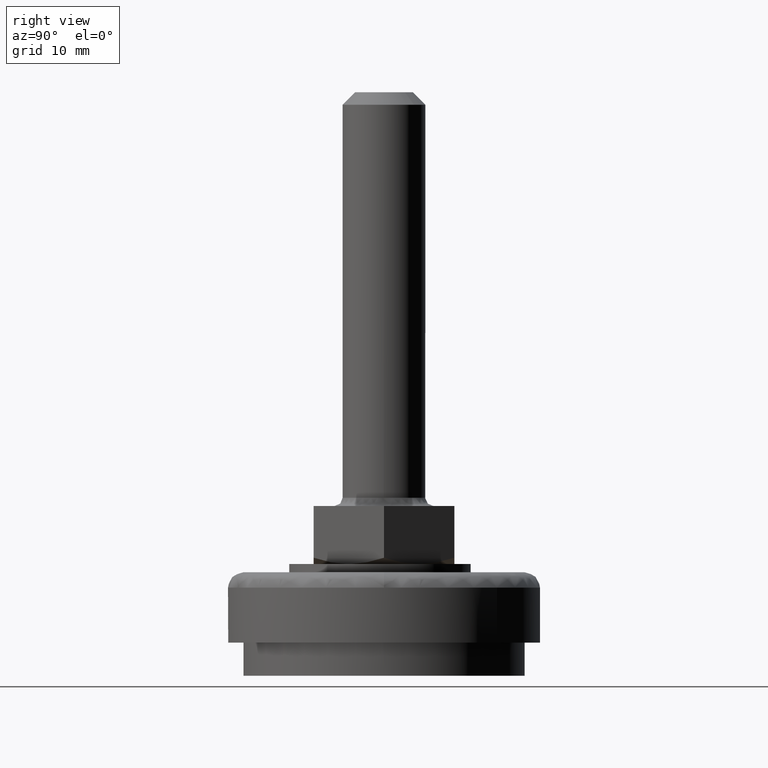
[diagram: clean part render]
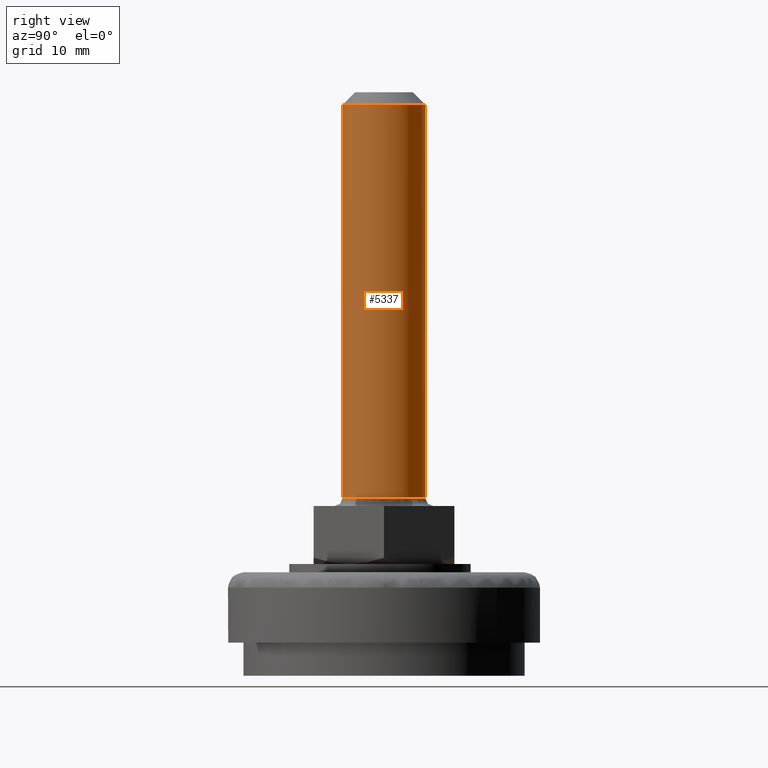
[diagram: same view with one face highlighted and labeled with its STEP entity id]
A machine part, right view. The second image highlights one B-rep face of the part: STEP entity #5337.
In plain terms, the highlighted face is a freeform B-spline surface patch.
Its self-contained STEP definition (entity closure, byte-faithful):
#5074=CARTESIAN_POINT('',(0.043632677810114,4.999809615361471,68.999999999956628));
#5075=VERTEX_POINT('',#5074);
#5081=CARTESIAN_POINT('',(-5.0,0.0,69.0));
#5082=VERTEX_POINT('',#5081);
#5083=CARTESIAN_POINT('',(-5.0,0.0,69.0));
#5084=CARTESIAN_POINT('',(-5.000000000000001,5.000000000000001,69.0));
#5085=CARTESIAN_POINT('',(0.0,5.0,69.0));
#5086=CARTESIAN_POINT('',(0.021816754421398,5.000000000000001,69.0));
#5087=CARTESIAN_POINT('',(0.043632677810114,4.999809615361471,68.999999999956628));
#5095=(BOUNDED_CURVE()B_SPLINE_CURVE(2,(#5083,#5084,#5085,#5086,#5087),.UNSPECIFIED.,.F.,.U.)B_SPLINE_CURVE_WITH_KNOTS((3,2,3),(0.500000000000000,0.750000000000000,0.751539894357384),.UNSPECIFIED.)CURVE()GEOMETRIC_REPRESENTATION_ITEM()RATIONAL_B_SPLINE_CURVE((1.0,0.707106781186548,1.0,0.998195901540132,0.996414028048572))REPRESENTATION_ITEM(''));
#5096=EDGE_CURVE('',#5082,#5075,#5095,.T.);
#5098=CARTESIAN_POINT('',(-3.267685414833657,-3.784472490279160,69.0));
#5099=VERTEX_POINT('',#5098);
#5100=CARTESIAN_POINT('',(-3.267685414833657,-3.784472490279161,69.0));
#5101=CARTESIAN_POINT('',(-5.0,-2.288713406710740,69.0));
#5102=CARTESIAN_POINT('',(-5.0,0.0,69.0));
#5110=(BOUNDED_CURVE()B_SPLINE_CURVE(2,(#5100,#5101,#5102),.UNSPECIFIED.,.F.,.U.)B_SPLINE_CURVE_WITH_KNOTS((3,3),(0.363957600839553,0.500000000000000),.UNSPECIFIED.)CURVE()GEOMETRIC_REPRESENTATION_ITEM()RATIONAL_B_SPLINE_CURVE((0.854696232557818,0.840616415259169,1.0))REPRESENTATION_ITEM(''));
#5111=EDGE_CURVE('',#5099,#5082,#5110,.T.);
#5113=CARTESIAN_POINT('',(-0.130880583114135,-4.998286733766520,69.0));
#5114=VERTEX_POINT('',#5113);
#5128=CARTESIAN_POINT('',(5.0,0.0,69.0));
#5129=VERTEX_POINT('',#5128);
#5130=CARTESIAN_POINT('',(5.0,0.0,69.0));
#5131=CARTESIAN_POINT('',(5.000000000000001,-5.000000000000001,69.0));
#5132=CARTESIAN_POINT('',(0.0,-5.0,69.0));
#5133=CARTESIAN_POINT('',(-0.065451505142447,-5.000000000000001,69.0));
#5134=CARTESIAN_POINT('',(-0.130880583114135,-4.998286733766520,69.0));
#5142=(BOUNDED_CURVE()B_SPLINE_CURVE(2,(#5130,#5131,#5132,#5133,#5134),.UNSPECIFIED.,.F.,.U.)B_SPLINE_CURVE_WITH_KNOTS((3,2,3),(0.0,0.250000000000000,0.254603161143202),.UNSPECIFIED.)CURVE()GEOMETRIC_REPRESENTATION_ITEM()RATIONAL_B_SPLINE_CURVE((1.0,0.707106781186548,1.0,0.994607061264202,0.989412719056695))REPRESENTATION_ITEM(''));
#5143=EDGE_CURVE('',#5129,#5114,#5142,.T.);
#5145=CARTESIAN_POINT('',(3.448196213929428,3.620765508872913,68.999999999999915));
#5146=VERTEX_POINT('',#5145);
#5147=CARTESIAN_POINT('',(3.448196213929428,3.620765508872913,68.999999999999915));
#5148=CARTESIAN_POINT('',(4.999999999999999,2.142922238767091,68.999999999999986));
#5149=CARTESIAN_POINT('',(5.0,0.0,69.0));
#5157=(BOUNDED_CURVE()B_SPLINE_CURVE(2,(#5147,#5148,#5149),.UNSPECIFIED.,.F.,.U.)B_SPLINE_CURVE_WITH_KNOTS((3,3),(0.871317023850317,1.0),.UNSPECIFIED.)CURVE()GEOMETRIC_REPRESENTATION_ITEM()RATIONAL_B_SPLINE_CURVE((0.853680523245723,0.849238515636099,1.0))REPRESENTATION_ITEM(''));
#5158=EDGE_CURVE('',#5146,#5129,#5157,.T.);
#5196=CARTESIAN_POINT('',(0.043632677810114,4.999809615361471,68.999999999956628));
#5197=CARTESIAN_POINT('',(2.018230574103055,4.982577560286129,68.999999999999986));
#5198=CARTESIAN_POINT('',(3.448196213929428,3.620765508872913,68.999999999999915));
#5206=(BOUNDED_CURVE()B_SPLINE_CURVE(2,(#5196,#5197,#5198),.UNSPECIFIED.,.F.,.U.)B_SPLINE_CURVE_WITH_KNOTS((3,3),(0.751539894357384,0.871317023850317),.UNSPECIFIED.)CURVE()GEOMETRIC_REPRESENTATION_ITEM()RATIONAL_B_SPLINE_CURVE((0.996414028048573,0.857815109937655,0.853680523245723))REPRESENTATION_ITEM(''));
#5207=EDGE_CURVE('',#5075,#5146,#5206,.T.);
#5213=CARTESIAN_POINT('',(-3.267686856523481,-3.784471245458693,70.187500000010985));
#5214=CARTESIAN_POINT('',(-5.060282995607246,-2.236661138625977,70.187500000010985));
#5215=CARTESIAN_POINT('',(-4.998286624877784,0.130884741539367,70.187500000010985));
#5216=CARTESIAN_POINT('',(-4.867401883338416,5.129171366417153,70.187500000010985));
#5217=CARTESIAN_POINT('',(0.130884741539367,4.998286624877784,70.187500000010985));
#5218=CARTESIAN_POINT('',(5.129171366417153,4.867401883338416,70.187500000010985));
#5219=CARTESIAN_POINT('',(4.998286624877784,-0.130884741539367,70.187500000010985));
#5220=CARTESIAN_POINT('',(4.867401883338416,-5.129171366417153,70.187500000010985));
#5221=CARTESIAN_POINT('',(-0.130884741539367,-4.998286624877784,70.187500000010985));
#5222=CARTESIAN_POINT('',(-3.267686856523481,-3.784471245458693,20.282812499549866));
#5223=CARTESIAN_POINT('',(-5.060282995607246,-2.236661138625977,20.282812499549863));
#5224=CARTESIAN_POINT('',(-4.998286624877784,0.130884741539367,20.282812499549859));
#5225=CARTESIAN_POINT('',(-4.867401883338416,5.129171366417153,20.282812499549866));
#5226=CARTESIAN_POINT('',(0.130884741539367,4.998286624877784,20.282812499549859));
#5227=CARTESIAN_POINT('',(5.129171366417153,4.867401883338416,20.282812499549866));
#5228=CARTESIAN_POINT('',(4.998286624877784,-0.130884741539367,20.282812499549859));
#5229=CARTESIAN_POINT('',(4.867401883338416,-5.129171366417153,20.282812499549866));
#5230=CARTESIAN_POINT('',(-0.130884741539367,-4.998286624877784,20.282812499549859));
#5238=(BOUNDED_SURFACE()B_SPLINE_SURFACE(2,1,((#5213,#5222),(#5214,#5223),(#5215,#5224),(#5216,#5225),(#5217,#5226),(#5218,#5227),(#5219,#5228),(#5220,#5229),(#5221,#5230)),.UNSPECIFIED.,.F.,.F.,.U.)B_SPLINE_SURFACE_WITH_KNOTS((3,2,2,2,3),(2,2),(0.0,4.639191898578663,12.923463146040559,21.207734393502459,29.492005640964361),(0.0,49.904687500461129),.UNSPECIFIED.)GEOMETRIC_REPRESENTATION_ITEM()RATIONAL_B_SPLINE_SURFACE(((0.855662221768731,0.855662221768731),(0.835979797464467,0.835979797464467),(1.0,1.0),(0.707106781186548,0.707106781186548),(1.0,1.0),(0.707106781186548,0.707106781186548),(1.0,1.0),(0.707106781186548,0.707106781186548),(1.0,1.0)))REPRESENTATION_ITEM('')SURFACE());
#5239=CARTESIAN_POINT('',(-5.0,0.0,21.500000000000000));
#5240=VERTEX_POINT('',#5239);
#5241=CARTESIAN_POINT('',(-3.267684878484034,-3.784472953387294,21.500000000000011));
#5242=VERTEX_POINT('',#5241);
#5243=CARTESIAN_POINT('',(-5.0,0.0,21.500000000000000));
#5244=CARTESIAN_POINT('',(-5.0,-2.288713835257791,21.500000000000000));
#5245=CARTESIAN_POINT('',(-3.267684878484034,-3.784472953387294,21.500000000000011));
#5253=(BOUNDED_CURVE()B_SPLINE_CURVE(2,(#5243,#5244,#5245),.UNSPECIFIED.,.F.,.U.)B_SPLINE_CURVE_WITH_KNOTS((3,3),(0.500000000000000,0.636042420573532),.UNSPECIFIED.)CURVE()GEOMETRIC_REPRESENTATION_ITEM()RATIONAL_B_SPLINE_CURVE((1.0,0.840616390172180,0.854696236990151))REPRESENTATION_ITEM(''));
#5254=EDGE_CURVE('',#5240,#5242,#5253,.T.);
#5255=ORIENTED_EDGE('',*,*,#5254,.T.);
#5256=CARTESIAN_POINT('',(-3.267685414833657,-3.784472490279160,69.0));
#5257=CARTESIAN_POINT('',(-3.267684878484034,-3.784472953387294,21.500000000000011));
#5258=QUASI_UNIFORM_CURVE('',1,(#5256,#5257),.UNSPECIFIED.,.F.,.U.);
#5259=EDGE_CURVE('',#5099,#5242,#5258,.T.);
#5260=ORIENTED_EDGE('',*,*,#5259,.F.);
#5261=ORIENTED_EDGE('',*,*,#5111,.T.);
#5262=ORIENTED_EDGE('',*,*,#5096,.T.);
#5263=ORIENTED_EDGE('',*,*,#5207,.T.);
#5264=ORIENTED_EDGE('',*,*,#5158,.T.);
#5265=ORIENTED_EDGE('',*,*,#5143,.T.);
#5266=CARTESIAN_POINT('',(-0.130884744751212,-4.998286624793680,21.500000000000000));
#5267=VERTEX_POINT('',#5266);
#5268=CARTESIAN_POINT('',(-0.130880583114135,-4.998286733766520,69.0));
#5269=CARTESIAN_POINT('',(-0.130884744751212,-4.998286624793680,21.500000000000000));
#5270=QUASI_UNIFORM_CURVE('',1,(#5268,#5269),.UNSPECIFIED.,.F.,.U.);
#5271=EDGE_CURVE('',#5114,#5267,#5270,.T.);
#5272=ORIENTED_EDGE('',*,*,#5271,.T.);
#5273=CARTESIAN_POINT('',(4.999605221019039,-0.062830199420076,21.499999999561108));
#5274=VERTEX_POINT('',#5273);
#5275=CARTESIAN_POINT('',(-0.130884744751212,-4.998286624793679,21.500000000000004));
#5276=CARTESIAN_POINT('',(-0.065453588637673,-5.000000000000001,21.500000000000000));
#5277=CARTESIAN_POINT('',(0.0,-5.0,21.500000000000000));
#5278=CARTESIAN_POINT('',(4.937559649530027,-5.0,21.499999999999993));
#5279=CARTESIAN_POINT('',(4.999605221019039,-0.062830199420076,21.499999999561112));
#5287=(BOUNDED_CURVE()B_SPLINE_CURVE(2,(#5275,#5276,#5277,#5278,#5279),.UNSPECIFIED.,.F.,.U.)B_SPLINE_CURVE_WITH_KNOTS((3,2,3),(0.745396693116211,0.750000000000000,0.997784295921495),.UNSPECIFIED.)CURVE()GEOMETRIC_REPRESENTATION_ITEM()RATIONAL_B_SPLINE_CURVE((0.989412390140979,0.994606890518484,1.0,0.709702639984513,0.994854295643476))REPRESENTATION_ITEM(''));
#5288=EDGE_CURVE('',#5267,#5274,#5287,.T.);
#5289=ORIENTED_EDGE('',*,*,#5288,.T.);
#5290=CARTESIAN_POINT('',(5.0,0.0,21.500000000000000));
#5291=VERTEX_POINT('',#5290);
#5292=CARTESIAN_POINT('',(4.999605221019039,-0.062830199420076,21.499999999561112));
#5293=CARTESIAN_POINT('',(5.000000000000001,-0.031416339962762,21.500000000000000));
#5294=CARTESIAN_POINT('',(5.0,0.0,21.500000000000000));
#5302=(BOUNDED_CURVE()B_SPLINE_CURVE(2,(#5292,#5293,#5294),.UNSPECIFIED.,.F.,.U.)B_SPLINE_CURVE_WITH_KNOTS((3,3),(0.997784295921495,1.0),.UNSPECIFIED.)CURVE()GEOMETRIC_REPRESENTATION_ITEM()RATIONAL_B_SPLINE_CURVE((0.994854295643476,0.997404141202034,1.0))REPRESENTATION_ITEM(''));
#5303=EDGE_CURVE('',#5274,#5291,#5302,.T.);
#5304=ORIENTED_EDGE('',*,*,#5303,.T.);
#5305=CARTESIAN_POINT('',(0.348666257941468,4.987828369197670,21.499999999576328));
#5306=VERTEX_POINT('',#5305);
#5307=CARTESIAN_POINT('',(5.0,0.0,21.500000000000000));
#5308=CARTESIAN_POINT('',(4.999999999999998,4.662684236212669,21.500000000000000));
#5309=CARTESIAN_POINT('',(0.348666257941468,4.987828369197670,21.499999999576332));
#5317=(BOUNDED_CURVE()B_SPLINE_CURVE(2,(#5307,#5308,#5309),.UNSPECIFIED.,.F.,.U.)B_SPLINE_CURVE_WITH_KNOTS((3,3),(0.0,0.237833686530703),.UNSPECIFIED.)CURVE()GEOMETRIC_REPRESENTATION_ITEM()RATIONAL_B_SPLINE_CURVE((1.0,0.721360504039011,0.972879876377694))REPRESENTATION_ITEM(''));
#5318=EDGE_CURVE('',#5291,#5306,#5317,.T.);
#5319=ORIENTED_EDGE('',*,*,#5318,.T.);
#5320=CARTESIAN_POINT('',(0.348666257941468,4.987828369197670,21.499999999576332));
#5321=CARTESIAN_POINT('',(0.174545579438051,5.0,21.500000000000007));
#5322=CARTESIAN_POINT('',(0.0,5.0,21.500000000000000));
#5323=CARTESIAN_POINT('',(-5.000000000000001,5.000000000000001,21.499999999999996));
#5324=CARTESIAN_POINT('',(-5.0,0.0,21.500000000000000));
#5332=(BOUNDED_CURVE()B_SPLINE_CURVE(2,(#5320,#5321,#5322,#5323,#5324),.UNSPECIFIED.,.F.,.U.)B_SPLINE_CURVE_WITH_KNOTS((3,2,3),(0.237833686530703,0.250000000000000,0.500000000000000),.UNSPECIFIED.)CURVE()GEOMETRIC_REPRESENTATION_ITEM()RATIONAL_B_SPLINE_CURVE((0.972879876377694,0.985746277147537,1.0,0.707106781186548,1.0))REPRESENTATION_ITEM(''));
#5333=EDGE_CURVE('',#5306,#5240,#5332,.T.);
#5334=ORIENTED_EDGE('',*,*,#5333,.T.);
#5335=EDGE_LOOP('',(#5255,#5260,#5261,#5262,#5263,#5264,#5265,#5272,#5289,#5304,#5319,#5334));
#5336=FACE_OUTER_BOUND('',#5335,.T.);
#5337=ADVANCED_FACE('',(#5336),#5238,.T.);